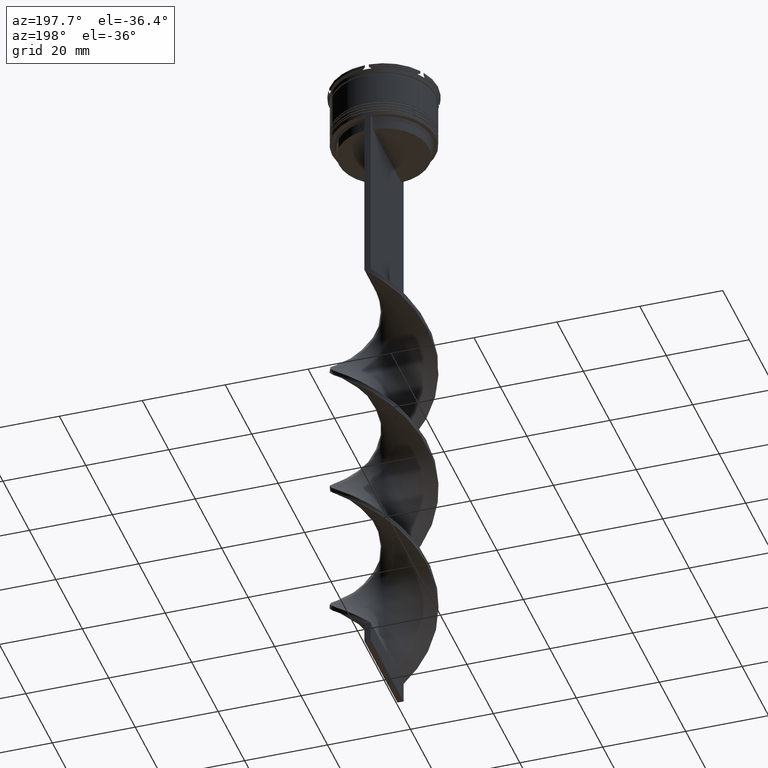
[diagram: clean part render]
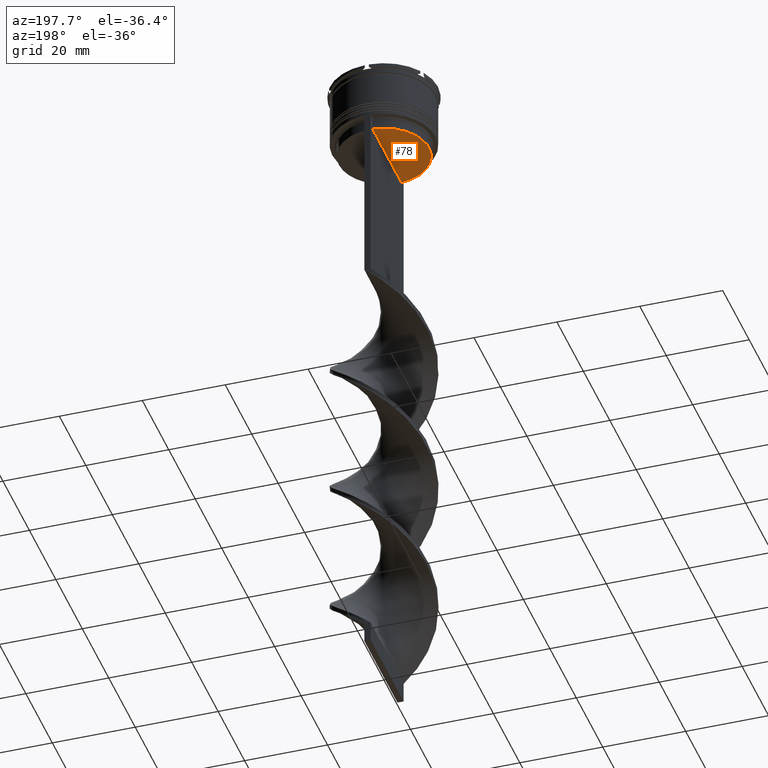
[diagram: same view with one face highlighted and labeled with its STEP entity id]
A machine part, auxiliary view. The second image highlights one B-rep face of the part: STEP entity #78.
In plain terms, the highlighted planar face has unit normal (0, -0, 1).
Its self-contained STEP definition (entity closure, byte-faithful):
#78 = ADVANCED_FACE ( 'NONE', ( #2748 ), #858, .F. ) ;
#331 = DIRECTION ( 'NONE',  ( 1.000000000000000000, 0.000000000000000000, 0.000000000000000000 ) ) ;
#542 = LINE ( 'NONE', #1557, #1461 ) ;
#557 = CARTESIAN_POINT ( 'NONE',  ( 0.000000000000000000, 10.90000000000000213, -17.00000000000000000 ) ) ;
#858 = PLANE ( 'NONE',  #3107 ) ;
#937 = CARTESIAN_POINT ( 'NONE',  ( -0.7499999999999997780, 10.87416663473574019, -17.00000000000000000 ) ) ;
#1018 = VERTEX_POINT ( 'NONE', #1773 ) ;
#1208 = ORIENTED_EDGE ( 'NONE', *, *, #3362, .T. ) ;
#1277 = CARTESIAN_POINT ( 'NONE',  ( 0.000000000000000000, 0.000000000000000000, -17.00000000000000000 ) ) ;
#1461 = VECTOR ( 'NONE', #2234, 1000.000000000000000 ) ;
#1557 = CARTESIAN_POINT ( 'NONE',  ( -0.7499999999999997780, 10.90000000000000213, -17.00000000000000000 ) ) ;
#1593 = VERTEX_POINT ( 'NONE', #937 ) ;
#1638 = EDGE_CURVE ( 'NONE', #1593, #1018, #3383, .T. ) ;
#1773 = CARTESIAN_POINT ( 'NONE',  ( -0.7499999999999997780, -10.87416663473574019, -17.00000000000000000 ) ) ;
#2146 = EDGE_LOOP ( 'NONE', ( #3162, #1208 ) ) ;
#2148 = DIRECTION ( 'NONE',  ( 0.000000000000000000, -0.000000000000000000, 1.000000000000000000 ) ) ;
#2234 = DIRECTION ( 'NONE',  ( 0.000000000000000000, -1.000000000000000000, 0.000000000000000000 ) ) ;
#2748 = FACE_OUTER_BOUND ( 'NONE', #2146, .T. ) ;
#3107 = AXIS2_PLACEMENT_3D ( 'NONE', #557, #2148, #3417 ) ;
#3162 = ORIENTED_EDGE ( 'NONE', *, *, #1638, .F. ) ;
#3315 = AXIS2_PLACEMENT_3D ( 'NONE', #1277, #3815, #331 ) ;
#3362 = EDGE_CURVE ( 'NONE', #1593, #1018, #542, .T. ) ;
#3383 = CIRCLE ( 'NONE', #3315, 10.90000000000000213 ) ;
#3417 = DIRECTION ( 'NONE',  ( 1.000000000000000000, 0.000000000000000000, 0.000000000000000000 ) ) ;
#3815 = DIRECTION ( 'NONE',  ( -0.000000000000000000, -0.000000000000000000, 1.000000000000000000 ) ) ;